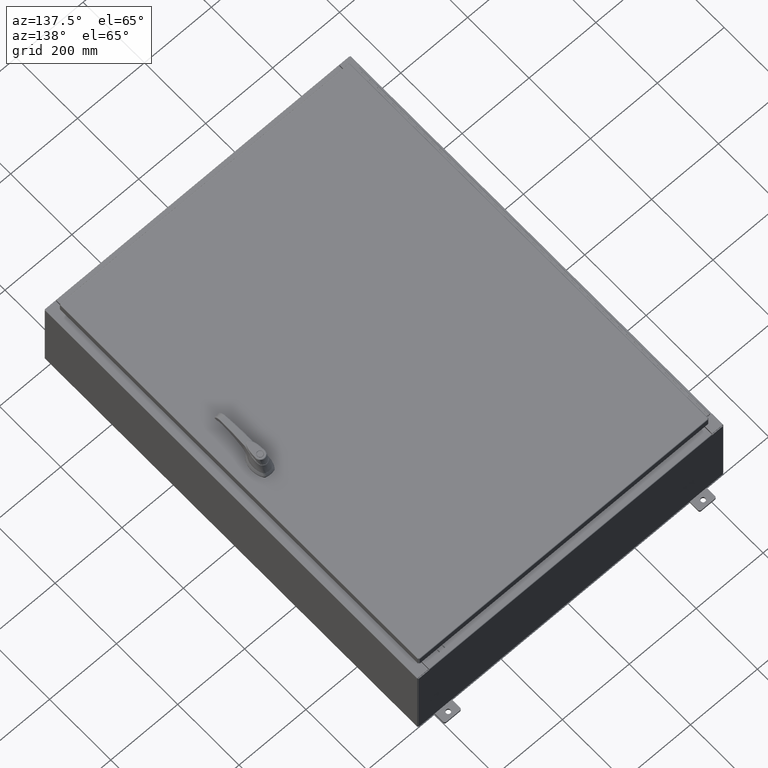
[diagram: clean part render]
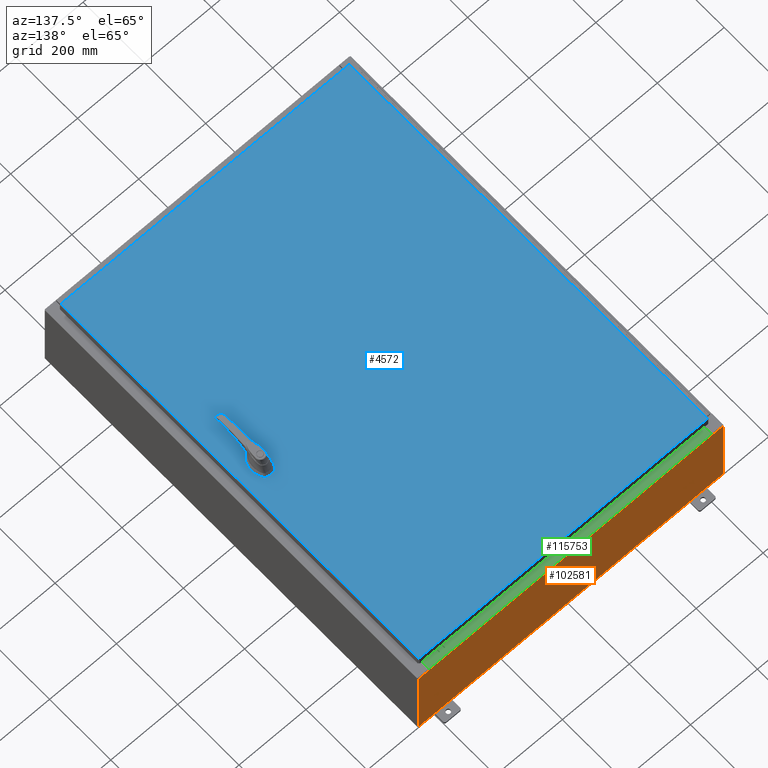
[diagram: same view with three faces highlighted in distinct colors, each labeled with its STEP entity id]
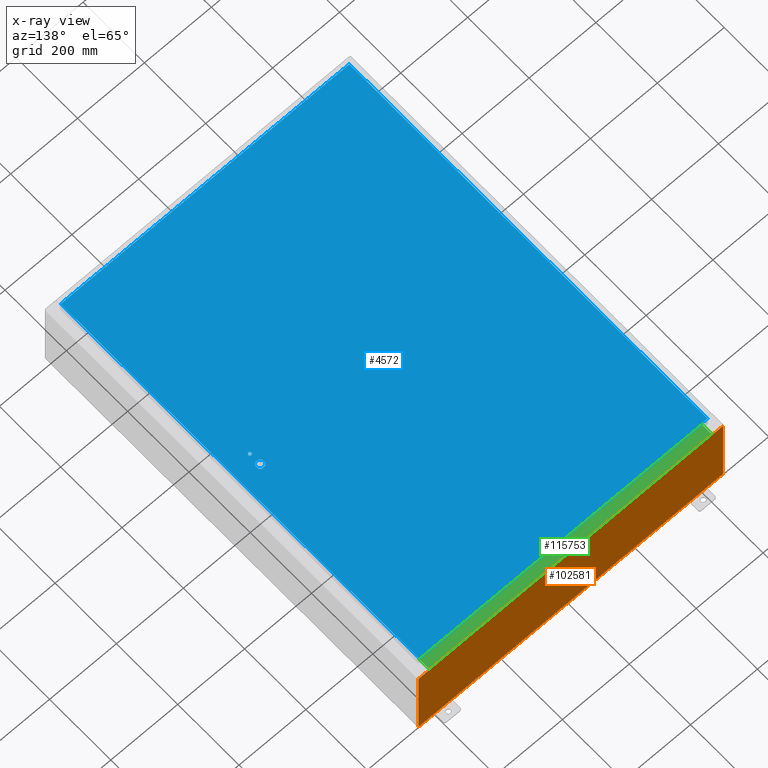
[diagram: x-ray of the same camera — body ghosted, the three highlighted faces saturated]
A machine part, auxiliary view with three faces highlighted in distinct colors.
The next image is the same camera in x-ray (body ghosted, the three faces saturated) — at least one of them is partly hidden behind the body in this view.
Their STEP definitions:

[orange] entity #102581 — the highlighted planar face has unit normal (0, -1, 0).
#1045 = EDGE_CURVE ( 'NONE', #131779, #22119, #33244, .T. ) ;
#1266 = DIRECTION ( 'NONE',  ( 0.0000000000000000000, 0.0000000000000000000, 1.000000000000000000 ) ) ;
#2542 = LINE ( 'NONE', #76833, #30133 ) ;
#2841 = DIRECTION ( 'NONE',  ( 0.0000000000000000000, -0.0000000000000000000, -1.000000000000000000 ) ) ;
#3078 = EDGE_CURVE ( 'NONE', #13452, #79536, #100978, .T. ) ;
#4692 = CARTESIAN_POINT ( 'NONE',  ( -17.92530000000000000, 0.0000000000000000000, -4.925300000000000000 ) ) ;
#6649 = CARTESIAN_POINT ( 'NONE',  ( -17.92530000000000000, 0.0000000000000000000, 4.925300000000000000 ) ) ;
#7094 = DIRECTION ( 'NONE',  ( 1.000000000000000000, 0.0000000000000000000, 0.0000000000000000000 ) ) ;
#11893 = EDGE_CURVE ( 'NONE', #41141, #53277, #79607, .T. ) ;
#12869 = CARTESIAN_POINT ( 'NONE',  ( 0.0000000000000000000, 0.0000000000000000000, 0.0000000000000000000 ) ) ;
#13408 = EDGE_LOOP ( 'NONE', ( #30402, #85551, #60114, #22828, #96678, #127065, #69220, #95227, #118389, #64355, #78324, #94780 ) ) ;
#13452 = VERTEX_POINT ( 'NONE', #13710 ) ;
#13710 = CARTESIAN_POINT ( 'NONE',  ( 17.92530000000000000, 0.0000000000000000000, -4.925300000000000000 ) ) ;
#14774 = DIRECTION ( 'NONE',  ( 0.0000000000000000000, 0.0000000000000000000, 1.000000000000000000 ) ) ;
#15480 = DIRECTION ( 'NONE',  ( -1.000000000000000000, -0.0000000000000000000, -0.0000000000000000000 ) ) ;
#16429 = EDGE_CURVE ( 'NONE', #79536, #131779, #116451, .T. ) ;
#16711 = CARTESIAN_POINT ( 'NONE',  ( -16.63720000000000400, -0.0000000000000000000, 4.874950000000000100 ) ) ;
#18571 = CARTESIAN_POINT ( 'NONE',  ( -16.67455000000000000, 0.0000000000000000000, 4.874950000000000100 ) ) ;
#18706 = EDGE_CURVE ( 'NONE', #123167, #20708, #2542, .T. ) ;
#20708 = VERTEX_POINT ( 'NONE', #110032 ) ;
#22119 = VERTEX_POINT ( 'NONE', #34513 ) ;
#22828 = ORIENTED_EDGE ( 'NONE', *, *, #94813, .T. ) ;
#24497 = VECTOR ( 'NONE', #101297, 39.37007874015748100 ) ;
#26015 = CIRCLE ( 'NONE', #84328, 0.01867499999999949400 ) ;
#30133 = VECTOR ( 'NONE', #14774, 39.37007874015748100 ) ;
#30402 = ORIENTED_EDGE ( 'NONE', *, *, #57497, .F. ) ;
#32994 = VECTOR ( 'NONE', #1266, 39.37007874015748100 ) ;
#33146 = LINE ( 'NONE', #120843, #112623 ) ;
#33244 = LINE ( 'NONE', #133852, #88408 ) ;
#34428 = CARTESIAN_POINT ( 'NONE',  ( 16.65587500000000200, 0.0000000000000000000, 4.874950000000000100 ) ) ;
#34513 = CARTESIAN_POINT ( 'NONE',  ( -16.67455000000000000, 0.0000000000000000000, 4.925300000000000000 ) ) ;
#35944 = DIRECTION ( 'NONE',  ( -0.0000000000000000000, 1.000000000000000000, -0.0000000000000000000 ) ) ;
#37265 = VECTOR ( 'NONE', #107320, 39.37007874015748100 ) ;
#41141 = VERTEX_POINT ( 'NONE', #42807 ) ;
#42807 = CARTESIAN_POINT ( 'NONE',  ( -16.63720000000000400, -7.171100983368691200E-016, 4.912300000000000100 ) ) ;
#44780 = DIRECTION ( 'NONE',  ( 0.0000000000000000000, 0.0000000000000000000, -1.000000000000000000 ) ) ;
#45172 = CARTESIAN_POINT ( 'NONE',  ( -16.63720000000000400, -7.171100983368691200E-016, 4.912300000000000100 ) ) ;
#45845 = EDGE_CURVE ( 'NONE', #53277, #104588, #26015, .T. ) ;
#49044 = VECTOR ( 'NONE', #15480, 39.37007874015748100 ) ;
#49165 = LINE ( 'NONE', #6649, #128688 ) ;
#49589 = CARTESIAN_POINT ( 'NONE',  ( -16.63720000000000400, -0.0000000000000000000, 0.0000000000000000000 ) ) ;
#52596 = VECTOR ( 'NONE', #91628, 39.37007874015748100 ) ;
#53277 = VERTEX_POINT ( 'NONE', #16711 ) ;
#57497 = EDGE_CURVE ( 'NONE', #104588, #22119, #112480, .T. ) ;
#60114 = ORIENTED_EDGE ( 'NONE', *, *, #11893, .F. ) ;
#63386 = CARTESIAN_POINT ( 'NONE',  ( -16.67455000000000000, -0.0000000000000000000, 0.0000000000000000000 ) ) ;
#64355 = ORIENTED_EDGE ( 'NONE', *, *, #3078, .T. ) ;
#64933 = DIRECTION ( 'NONE',  ( 0.0000000000000000000, -1.000000000000000000, 0.0000000000000000000 ) ) ;
#66203 = EDGE_CURVE ( 'NONE', #77067, #123167, #112908, .T. ) ;
#69220 = ORIENTED_EDGE ( 'NONE', *, *, #90649, .F. ) ;
#69852 = FACE_OUTER_BOUND ( 'NONE', #13408, .T. ) ;
#72972 = CARTESIAN_POINT ( 'NONE',  ( -17.92530000000000000, 0.0000000000000000000, 4.925300000000000000 ) ) ;
#76833 = CARTESIAN_POINT ( 'NONE',  ( 16.63720000000000400, 0.0000000000000000000, 0.0000000000000000000 ) ) ;
#77067 = VERTEX_POINT ( 'NONE', #98441 ) ;
#77544 = CARTESIAN_POINT ( 'NONE',  ( -17.92530000000000000, 0.0000000000000000000, -4.925300000000000000 ) ) ;
#78324 = ORIENTED_EDGE ( 'NONE', *, *, #16429, .T. ) ;
#79536 = VERTEX_POINT ( 'NONE', #4692 ) ;
#79607 = LINE ( 'NONE', #49589, #24497 ) ;
#80224 = LINE ( 'NONE', #122414, #52596 ) ;
#82281 = AXIS2_PLACEMENT_3D ( 'NONE', #12869, #64933, #2841 ) ;
#82873 = EDGE_CURVE ( 'NONE', #122167, #91487, #49165, .T. ) ;
#84328 = AXIS2_PLACEMENT_3D ( 'NONE', #98066, #35944, #108492 ) ;
#85551 = ORIENTED_EDGE ( 'NONE', *, *, #45845, .F. ) ;
#88408 = VECTOR ( 'NONE', #121608, 39.37007874015748100 ) ;
#90649 = EDGE_CURVE ( 'NONE', #122167, #77067, #33146, .T. ) ;
#91487 = VERTEX_POINT ( 'NONE', #101244 ) ;
#91628 = DIRECTION ( 'NONE',  ( 0.0000000000000000000, 0.0000000000000000000, -1.000000000000000000 ) ) ;
#94780 = ORIENTED_EDGE ( 'NONE', *, *, #1045, .T. ) ;
#94813 = EDGE_CURVE ( 'NONE', #41141, #20708, #95736, .T. ) ;
#95227 = ORIENTED_EDGE ( 'NONE', *, *, #82873, .T. ) ;
#95736 = LINE ( 'NONE', #45172, #37265 ) ;
#96678 = ORIENTED_EDGE ( 'NONE', *, *, #18706, .F. ) ;
#98066 = CARTESIAN_POINT ( 'NONE',  ( -16.65587500000000200, 0.0000000000000000000, 4.874950000000000100 ) ) ;
#98441 = CARTESIAN_POINT ( 'NONE',  ( 16.67455000000000000, 0.0000000000000000000, 4.874950000000000100 ) ) ;
#100978 = LINE ( 'NONE', #77544, #49044 ) ;
#101244 = CARTESIAN_POINT ( 'NONE',  ( 17.92530000000000000, 0.0000000000000000000, 4.925300000000000000 ) ) ;
#101297 = DIRECTION ( 'NONE',  ( 0.0000000000000000000, 0.0000000000000000000, -1.000000000000000000 ) ) ;
#102581 = ADVANCED_FACE ( 'NONE', ( #69852 ), #127000, .F. ) ;
#104588 = VERTEX_POINT ( 'NONE', #18571 ) ;
#106920 = DIRECTION ( 'NONE',  ( -0.0000000000000000000, 1.000000000000000000, -0.0000000000000000000 ) ) ;
#107320 = DIRECTION ( 'NONE',  ( 1.000000000000000000, 0.0000000000000000000, 0.0000000000000000000 ) ) ;
#108492 = DIRECTION ( 'NONE',  ( 0.0000000000000000000, 0.0000000000000000000, -1.000000000000000000 ) ) ;
#108921 = CARTESIAN_POINT ( 'NONE',  ( -17.92530000000000000, 0.0000000000000000000, 4.925300000000000000 ) ) ;
#109933 = VECTOR ( 'NONE', #114220, 39.37007874015748100 ) ;
#110032 = CARTESIAN_POINT ( 'NONE',  ( 16.63720000000000400, 0.0000000000000000000, 4.912300000000000100 ) ) ;
#112480 = LINE ( 'NONE', #63386, #32994 ) ;
#112623 = VECTOR ( 'NONE', #131275, 39.37007874015748100 ) ;
#112908 = CIRCLE ( 'NONE', #128895, 0.01867499999999949400 ) ;
#114220 = DIRECTION ( 'NONE',  ( -0.0000000000000000000, -0.0000000000000000000, 1.000000000000000000 ) ) ;
#116451 = LINE ( 'NONE', #72972, #109933 ) ;
#118389 = ORIENTED_EDGE ( 'NONE', *, *, #124955, .T. ) ;
#120843 = CARTESIAN_POINT ( 'NONE',  ( 16.67454999999957700, -0.0000000000000000000, -1.447541957108341500E-012 ) ) ;
#121608 = DIRECTION ( 'NONE',  ( 1.000000000000000000, 0.0000000000000000000, 0.0000000000000000000 ) ) ;
#122167 = VERTEX_POINT ( 'NONE', #134294 ) ;
#122414 = CARTESIAN_POINT ( 'NONE',  ( 17.92530000000000000, 0.0000000000000000000, 4.925300000000000000 ) ) ;
#123167 = VERTEX_POINT ( 'NONE', #123287 ) ;
#123287 = CARTESIAN_POINT ( 'NONE',  ( 16.63720000000000400, 0.0000000000000000000, 4.874950000000000100 ) ) ;
#124955 = EDGE_CURVE ( 'NONE', #91487, #13452, #80224, .T. ) ;
#127000 = PLANE ( 'NONE',  #82281 ) ;
#127065 = ORIENTED_EDGE ( 'NONE', *, *, #66203, .F. ) ;
#128688 = VECTOR ( 'NONE', #7094, 39.37007874015748100 ) ;
#128895 = AXIS2_PLACEMENT_3D ( 'NONE', #34428, #106920, #44780 ) ;
#131275 = DIRECTION ( 'NONE',  ( -8.681145560800009800E-014, 0.0000000000000000000, -1.000000000000000000 ) ) ;
#131779 = VERTEX_POINT ( 'NONE', #108921 ) ;
#133852 = CARTESIAN_POINT ( 'NONE',  ( -17.92530000000000000, 0.0000000000000000000, 4.925300000000000000 ) ) ;
#134294 = CARTESIAN_POINT ( 'NONE',  ( 16.67455000000000700, 0.0000000000000000000, 4.925300000000000000 ) ) ;

[blue] entity #4572 — the highlighted planar face has unit normal (0, 0, -1).
#1358 = ORIENTED_EDGE ( 'NONE', *, *, #24389, .F. ) ;
#3121 = DIRECTION ( 'NONE',  ( 1.000000000000000000, 0.0000000000000000000, 0.0000000000000000000 ) ) ;
#3679 = CARTESIAN_POINT ( 'NONE',  ( -16.99029999999998400, 23.00630000000001000, -1.297627796990525000E-015 ) ) ;
#3929 = VECTOR ( 'NONE', #111366, 39.37007874015748100 ) ;
#4572 = ADVANCED_FACE ( 'NONE', ( #131586, #107220, #103974 ), #17760, .F. ) ;
#4670 = AXIS2_PLACEMENT_3D ( 'NONE', #68209, #6139, #78644 ) ;
#5545 = ORIENTED_EDGE ( 'NONE', *, *, #111319, .F. ) ;
#6086 = DIRECTION ( 'NONE',  ( -0.0000000000000000000, 0.0000000000000000000, 1.000000000000000000 ) ) ;
#6139 = DIRECTION ( 'NONE',  ( -0.0000000000000000000, 0.0000000000000000000, 1.000000000000000000 ) ) ;
#7181 = LINE ( 'NONE', #38802, #3929 ) ;
#9183 = LINE ( 'NONE', #74870, #64288 ) ;
#9805 = DIRECTION ( 'NONE',  ( -0.0000000000000000000, 0.0000000000000000000, 1.000000000000000000 ) ) ;
#10138 = CARTESIAN_POINT ( 'NONE',  ( 14.57799999999999900, 0.0000000000000000000, 0.0000000000000000000 ) ) ;
#10910 = ORIENTED_EDGE ( 'NONE', *, *, #75797, .F. ) ;
#12250 = VERTEX_POINT ( 'NONE', #73379 ) ;
#12830 = DIRECTION ( 'NONE',  ( 0.0000000000000000000, -1.000000000000000000, 0.0000000000000000000 ) ) ;
#14764 = VERTEX_POINT ( 'NONE', #128311 ) ;
#15132 = VECTOR ( 'NONE', #25121, 39.37007874015748100 ) ;
#15822 = ORIENTED_EDGE ( 'NONE', *, *, #97200, .F. ) ;
#16703 = ORIENTED_EDGE ( 'NONE', *, *, #133551, .F. ) ;
#17760 = PLANE ( 'NONE',  #124018 ) ;
#18381 = LINE ( 'NONE', #118453, #15132 ) ;
#18957 = CIRCLE ( 'NONE', #39138, 0.1715000000000011500 ) ;
#20506 = DIRECTION ( 'NONE',  ( 1.000000000000000000, 0.0000000000000000000, 0.0000000000000000000 ) ) ;
#21170 = CARTESIAN_POINT ( 'NONE',  ( 14.98099999999992700, 0.2002273707563075900, 0.0000000000000000000 ) ) ;
#22942 = EDGE_CURVE ( 'NONE', #69816, #49424, #113198, .T. ) ;
#23316 = AXIS2_PLACEMENT_3D ( 'NONE', #127284, #65209, #3121 ) ;
#23768 = ORIENTED_EDGE ( 'NONE', *, *, #26081, .F. ) ;
#24389 = EDGE_CURVE ( 'NONE', #49660, #12250, #9183, .T. ) ;
#25121 = DIRECTION ( 'NONE',  ( 0.0000000000000000000, 1.000000000000000000, 0.0000000000000000000 ) ) ;
#26081 = EDGE_CURVE ( 'NONE', #14764, #77304, #98201, .T. ) ;
#26313 = EDGE_CURVE ( 'NONE', #58547, #35760, #67401, .T. ) ;
#30336 = CARTESIAN_POINT ( 'NONE',  ( 14.40649999999999800, -1.338000000000000100, 0.0000000000000000000 ) ) ;
#31644 = VECTOR ( 'NONE', #72142, 39.37007874015748100 ) ;
#33495 = CARTESIAN_POINT ( 'NONE',  ( 16.99029999999999800, 23.00630000000001000, 1.946441695485787500E-015 ) ) ;
#33870 = CARTESIAN_POINT ( 'NONE',  ( 14.37777262924369000, -0.4029999999999252000, 0.0000000000000000000 ) ) ;
#34868 = LINE ( 'NONE', #51673, #31644 ) ;
#35522 = ORIENTED_EDGE ( 'NONE', *, *, #56575, .T. ) ;
#35649 = CARTESIAN_POINT ( 'NONE',  ( 14.57799999999999900, -1.338000000000000100, 0.0000000000000000000 ) ) ;
#35760 = VERTEX_POINT ( 'NONE', #36540 ) ;
#36540 = CARTESIAN_POINT ( 'NONE',  ( 16.99029999999999800, -23.00630000000000300, -2.048885995248197400E-016 ) ) ;
#36543 = ORIENTED_EDGE ( 'NONE', *, *, #53952, .F. ) ;
#38802 = CARTESIAN_POINT ( 'NONE',  ( 0.0000000000000000000, -0.4029999999999252000, 0.0000000000000000000 ) ) ;
#38994 = DIRECTION ( 'NONE',  ( -1.000000000000000000, 0.0000000000000000000, -0.0000000000000000000 ) ) ;
#39138 = AXIS2_PLACEMENT_3D ( 'NONE', #35649, #108181, #46012 ) ;
#42804 = VECTOR ( 'NONE', #82034, 39.37007874015748100 ) ;
#46012 = DIRECTION ( 'NONE',  ( 1.000000000000000000, 0.0000000000000000000, 0.0000000000000000000 ) ) ;
#46228 = CIRCLE ( 'NONE', #108936, 0.4499999999999168000 ) ;
#47587 = EDGE_LOOP ( 'NONE', ( #35522, #67290, #5545, #10910, #1358, #16703, #23768, #36543 ) ) ;
#48092 = CARTESIAN_POINT ( 'NONE',  ( 14.98099999999992900, -0.2002273707563079800, 0.0000000000000000000 ) ) ;
#49424 = VERTEX_POINT ( 'NONE', #48092 ) ;
#49660 = VERTEX_POINT ( 'NONE', #82156 ) ;
#51359 = CIRCLE ( 'NONE', #110487, 0.4499999999999168000 ) ;
#51673 = CARTESIAN_POINT ( 'NONE',  ( -16.99029999999998400, 23.00630000000001000, -1.297627796990525000E-015 ) ) ;
#53327 = EDGE_LOOP ( 'NONE', ( #86321, #55122, #130087, #84231 ) ) ;
#53952 = EDGE_CURVE ( 'NONE', #123836, #14764, #89820, .T. ) ;
#54174 = CARTESIAN_POINT ( 'NONE',  ( 14.77822737075630900, -0.4029999999999252000, 0.0000000000000000000 ) ) ;
#55122 = ORIENTED_EDGE ( 'NONE', *, *, #113485, .T. ) ;
#56575 = EDGE_CURVE ( 'NONE', #123836, #49424, #70433, .T. ) ;
#57606 = VECTOR ( 'NONE', #76251, 39.37007874015748100 ) ;
#57971 = CARTESIAN_POINT ( 'NONE',  ( 16.99029999999999800, 23.00630000000001000, 1.946441695485787500E-015 ) ) ;
#58241 = EDGE_CURVE ( 'NONE', #109019, #106145, #122100, .T. ) ;
#58313 = CARTESIAN_POINT ( 'NONE',  ( 14.74950000000000100, -1.338000000000000100, 0.0000000000000000000 ) ) ;
#58547 = VERTEX_POINT ( 'NONE', #107694 ) ;
#62646 = VERTEX_POINT ( 'NONE', #58313 ) ;
#62666 = CARTESIAN_POINT ( 'NONE',  ( 14.37777262924369000, 0.4029999999999252000, 0.0000000000000000000 ) ) ;
#64288 = VECTOR ( 'NONE', #12830, 39.37007874015748100 ) ;
#64532 = CIRCLE ( 'NONE', #4670, 0.1715000000000011500 ) ;
#65209 = DIRECTION ( 'NONE',  ( -0.0000000000000000000, 0.0000000000000000000, 1.000000000000000000 ) ) ;
#65826 = CARTESIAN_POINT ( 'NONE',  ( -16.99029999999999800, -23.00630000000000300, 1.946441695485787500E-015 ) ) ;
#67290 = ORIENTED_EDGE ( 'NONE', *, *, #22942, .F. ) ;
#67401 = LINE ( 'NONE', #65826, #57606 ) ;
#68145 = CARTESIAN_POINT ( 'NONE',  ( 14.57799999999999900, 0.0000000000000000000, 0.0000000000000000000 ) ) ;
#68209 = CARTESIAN_POINT ( 'NONE',  ( 14.57799999999999900, -1.338000000000000100, 0.0000000000000000000 ) ) ;
#69816 = VERTEX_POINT ( 'NONE', #54174 ) ;
#70433 = LINE ( 'NONE', #133730, #42804 ) ;
#70651 = VECTOR ( 'NONE', #93523, 39.37007874015748100 ) ;
#71849 = CARTESIAN_POINT ( 'NONE',  ( 14.57799999999999900, 0.0000000000000000000, 0.0000000000000000000 ) ) ;
#72142 = DIRECTION ( 'NONE',  ( 0.0000000000000000000, -1.000000000000000000, 0.0000000000000000000 ) ) ;
#73379 = CARTESIAN_POINT ( 'NONE',  ( 14.17500000000007400, -0.2002273707563079800, 0.0000000000000000000 ) ) ;
#73688 = ORIENTED_EDGE ( 'NONE', *, *, #121351, .F. ) ;
#74870 = CARTESIAN_POINT ( 'NONE',  ( 14.17500000000007400, 0.0000000000000000000, 0.0000000000000000000 ) ) ;
#75797 = EDGE_CURVE ( 'NONE', #12250, #99361, #51359, .T. ) ;
#76251 = DIRECTION ( 'NONE',  ( 1.000000000000000000, -0.0000000000000000000, -0.0000000000000000000 ) ) ;
#77304 = VERTEX_POINT ( 'NONE', #62666 ) ;
#78583 = DIRECTION ( 'NONE',  ( 1.000000000000000000, 0.0000000000000000000, 0.0000000000000000000 ) ) ;
#78644 = DIRECTION ( 'NONE',  ( 1.000000000000000000, 0.0000000000000000000, 0.0000000000000000000 ) ) ;
#79841 = CARTESIAN_POINT ( 'NONE',  ( 0.0000000000000000000, 0.0000000000000000000, 0.0000000000000000000 ) ) ;
#82034 = DIRECTION ( 'NONE',  ( 5.457491617345625800E-015, -1.000000000000000000, 0.0000000000000000000 ) ) ;
#82156 = CARTESIAN_POINT ( 'NONE',  ( 14.17500000000007400, 0.2002273707563079800, 0.0000000000000000000 ) ) ;
#82274 = DIRECTION ( 'NONE',  ( 1.000000000000000000, 0.0000000000000000000, 0.0000000000000000000 ) ) ;
#82595 = DIRECTION ( 'NONE',  ( -0.0000000000000000000, 0.0000000000000000000, 1.000000000000000000 ) ) ;
#83107 = CARTESIAN_POINT ( 'NONE',  ( 0.0000000000000000000, 0.4029999999999252000, 0.0000000000000000000 ) ) ;
#84231 = ORIENTED_EDGE ( 'NONE', *, *, #134309, .T. ) ;
#86321 = ORIENTED_EDGE ( 'NONE', *, *, #26313, .T. ) ;
#89820 = CIRCLE ( 'NONE', #109074, 0.4499999999999168000 ) ;
#93523 = DIRECTION ( 'NONE',  ( -1.000000000000000000, 0.0000000000000000000, 0.0000000000000000000 ) ) ;
#97200 = EDGE_CURVE ( 'NONE', #62646, #127527, #64532, .T. ) ;
#98201 = LINE ( 'NONE', #83107, #70651 ) ;
#99361 = VERTEX_POINT ( 'NONE', #33870 ) ;
#101098 = DIRECTION ( 'NONE',  ( 0.0000000000000000000, 0.0000000000000000000, -1.000000000000000000 ) ) ;
#103566 = EDGE_LOOP ( 'NONE', ( #15822, #73688 ) ) ;
#103974 = FACE_BOUND ( 'NONE', #47587, .T. ) ;
#106145 = VERTEX_POINT ( 'NONE', #3679 ) ;
#107220 = FACE_OUTER_BOUND ( 'NONE', #53327, .T. ) ;
#107694 = CARTESIAN_POINT ( 'NONE',  ( -16.99029999999999800, -23.00630000000000300, 1.946441695485787500E-015 ) ) ;
#108181 = DIRECTION ( 'NONE',  ( -0.0000000000000000000, 0.0000000000000000000, 1.000000000000000000 ) ) ;
#108936 = AXIS2_PLACEMENT_3D ( 'NONE', #71849, #9805, #82274 ) ;
#109019 = VERTEX_POINT ( 'NONE', #33495 ) ;
#109074 = AXIS2_PLACEMENT_3D ( 'NONE', #68145, #6086, #78583 ) ;
#110131 = DIRECTION ( 'NONE',  ( -1.000000000000000000, -0.0000000000000000000, -0.0000000000000000000 ) ) ;
#110487 = AXIS2_PLACEMENT_3D ( 'NONE', #10138, #82595, #20506 ) ;
#111319 = EDGE_CURVE ( 'NONE', #99361, #69816, #7181, .T. ) ;
#111366 = DIRECTION ( 'NONE',  ( 1.000000000000000000, 0.0000000000000000000, 0.0000000000000000000 ) ) ;
#113198 = CIRCLE ( 'NONE', #23316, 0.4499999999999168000 ) ;
#113485 = EDGE_CURVE ( 'NONE', #35760, #109019, #18381, .T. ) ;
#118453 = CARTESIAN_POINT ( 'NONE',  ( 16.99029999999999800, -23.00630000000000300, -2.048885995248197400E-016 ) ) ;
#118815 = VECTOR ( 'NONE', #110131, 39.37007874015748100 ) ;
#121351 = EDGE_CURVE ( 'NONE', #127527, #62646, #18957, .T. ) ;
#122100 = LINE ( 'NONE', #57971, #118815 ) ;
#123836 = VERTEX_POINT ( 'NONE', #21170 ) ;
#124018 = AXIS2_PLACEMENT_3D ( 'NONE', #79841, #101098, #38994 ) ;
#127284 = CARTESIAN_POINT ( 'NONE',  ( 14.57799999999999900, 0.0000000000000000000, 0.0000000000000000000 ) ) ;
#127527 = VERTEX_POINT ( 'NONE', #30336 ) ;
#128311 = CARTESIAN_POINT ( 'NONE',  ( 14.77822737075630900, 0.4029999999999252000, 0.0000000000000000000 ) ) ;
#130087 = ORIENTED_EDGE ( 'NONE', *, *, #58241, .T. ) ;
#131586 = FACE_BOUND ( 'NONE', #103566, .T. ) ;
#133551 = EDGE_CURVE ( 'NONE', #77304, #49660, #46228, .T. ) ;
#133730 = CARTESIAN_POINT ( 'NONE',  ( 14.98099999999992700, 8.175868191945441800E-014, 0.0000000000000000000 ) ) ;
#134309 = EDGE_CURVE ( 'NONE', #106145, #58547, #34868, .T. ) ;

[green] entity #115753 — the highlighted planar face has unit normal (0, 0, 1).
#368 = DIRECTION ( 'NONE',  ( -0.0000000000000000000, -1.000000000000000000, 3.566381192773190000E-015 ) ) ;
#3194 = VERTEX_POINT ( 'NONE', #130104 ) ;
#8492 = LINE ( 'NONE', #10423, #29550 ) ;
#10423 = CARTESIAN_POINT ( 'NONE',  ( 16.63720000000000000, -1.300299999999999800, 5.000000000000004400 ) ) ;
#20684 = VERTEX_POINT ( 'NONE', #99598 ) ;
#22092 = CARTESIAN_POINT ( 'NONE',  ( 16.63720000000000000, -1.287299999999999900, 5.000000000000004400 ) ) ;
#23300 = DIRECTION ( 'NONE',  ( -0.0000000000000000000, 1.000000000000000000, -3.566381192773190000E-015 ) ) ;
#28211 = CARTESIAN_POINT ( 'NONE',  ( -16.63720000000000000, -0.08770000000000081900, 5.000000000000000000 ) ) ;
#28561 = CARTESIAN_POINT ( 'NONE',  ( 0.0000000000000000000, 1.782631094477737600E-014, 5.000000000000000000 ) ) ;
#29550 = VECTOR ( 'NONE', #368, 39.37007874015748100 ) ;
#38920 = DIRECTION ( 'NONE',  ( 0.0000000000000000000, -1.000000000000000000, 3.566381192773190000E-015 ) ) ;
#40007 = VERTEX_POINT ( 'NONE', #22092 ) ;
#48668 = LINE ( 'NONE', #109866, #103866 ) ;
#48715 = FACE_OUTER_BOUND ( 'NONE', #60716, .T. ) ;
#50543 = LINE ( 'NONE', #85381, #105732 ) ;
#51502 = VECTOR ( 'NONE', #82183, 39.37007874015748100 ) ;
#60716 = EDGE_LOOP ( 'NONE', ( #73058, #63786, #117414, #130801 ) ) ;
#63786 = ORIENTED_EDGE ( 'NONE', *, *, #118681, .F. ) ;
#70450 = EDGE_CURVE ( 'NONE', #20684, #79748, #50543, .T. ) ;
#73058 = ORIENTED_EDGE ( 'NONE', *, *, #70450, .F. ) ;
#79748 = VERTEX_POINT ( 'NONE', #28211 ) ;
#82183 = DIRECTION ( 'NONE',  ( -1.000000000000000000, 0.0000000000000000000, 0.0000000000000000000 ) ) ;
#85381 = CARTESIAN_POINT ( 'NONE',  ( -16.63720000000000000, -0.07469999999999973900, 5.000000000000000000 ) ) ;
#87209 = EDGE_CURVE ( 'NONE', #3194, #79748, #48668, .T. ) ;
#99432 = DIRECTION ( 'NONE',  ( -1.000000000000000000, -3.284023746380717400E-017, 1.171208052571274300E-031 ) ) ;
#99598 = CARTESIAN_POINT ( 'NONE',  ( -16.63720000000000000, -1.287299999999999200, 5.000000000000004400 ) ) ;
#100153 = PLANE ( 'NONE',  #103091 ) ;
#101026 = DIRECTION ( 'NONE',  ( 0.0000000000000000000, 3.566381192773190000E-015, 1.000000000000000000 ) ) ;
#102961 = CARTESIAN_POINT ( 'NONE',  ( 16.63720000000000400, -1.287299999999999900, 5.000000000000002700 ) ) ;
#103091 = AXIS2_PLACEMENT_3D ( 'NONE', #28561, #101026, #38920 ) ;
#103411 = LINE ( 'NONE', #102961, #51502 ) ;
#103866 = VECTOR ( 'NONE', #99432, 39.37007874015748100 ) ;
#105732 = VECTOR ( 'NONE', #23300, 39.37007874015748100 ) ;
#109866 = CARTESIAN_POINT ( 'NONE',  ( 2.880088825576501100E-018, -0.08770000000000081900, 5.000000000000000000 ) ) ;
#115753 = ADVANCED_FACE ( 'NONE', ( #48715 ), #100153, .T. ) ;
#117414 = ORIENTED_EDGE ( 'NONE', *, *, #127609, .F. ) ;
#118681 = EDGE_CURVE ( 'NONE', #40007, #20684, #103411, .T. ) ;
#127609 = EDGE_CURVE ( 'NONE', #3194, #40007, #8492, .T. ) ;
#130104 = CARTESIAN_POINT ( 'NONE',  ( 16.63720000000000400, -0.08770000000000047200, 5.000000000000000000 ) ) ;
#130801 = ORIENTED_EDGE ( 'NONE', *, *, #87209, .T. ) ;